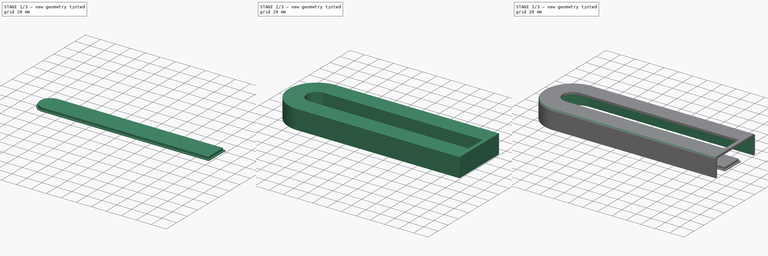
[diagram: build sequence overview — one tinted view per stage of 3, left to right]
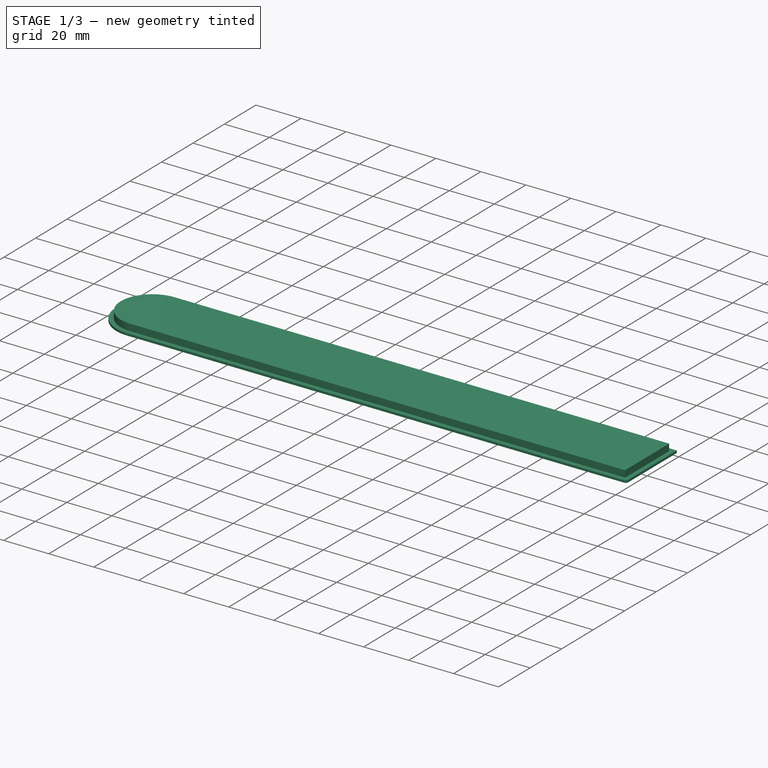
[diagram: stage 1 of 3 — iso view after this stage's code; geometry added in this stage tinted green]
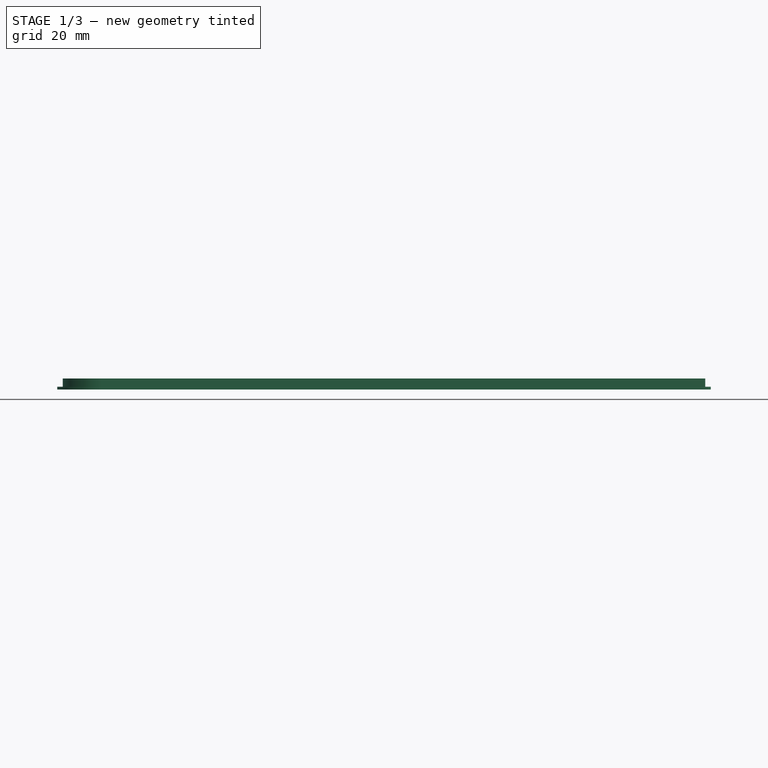
[diagram: stage 1 of 3 — front view after this stage's code; geometry added in this stage tinted green]
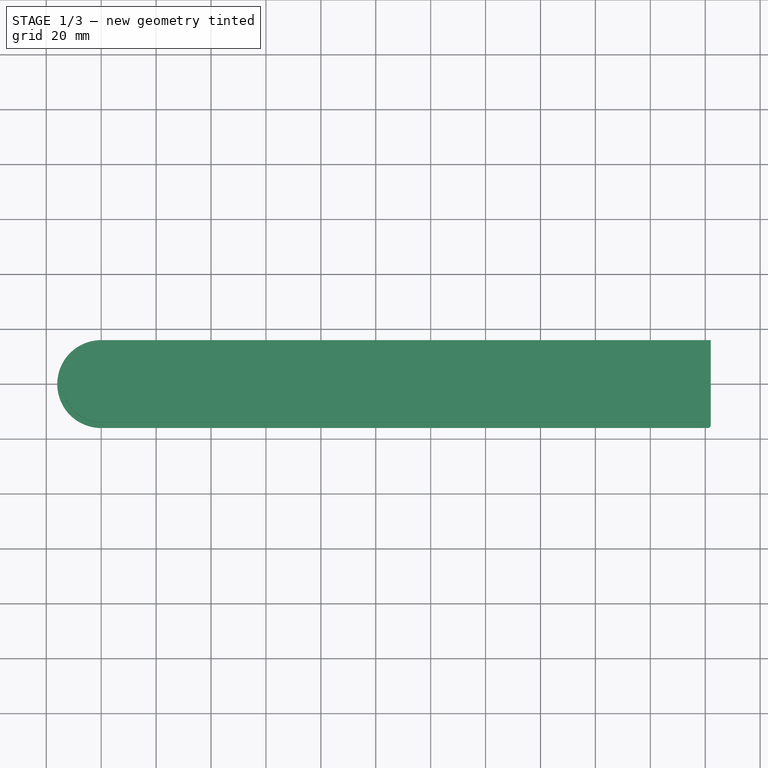
[diagram: stage 1 of 3 — top view after this stage's code; geometry added in this stage tinted green]
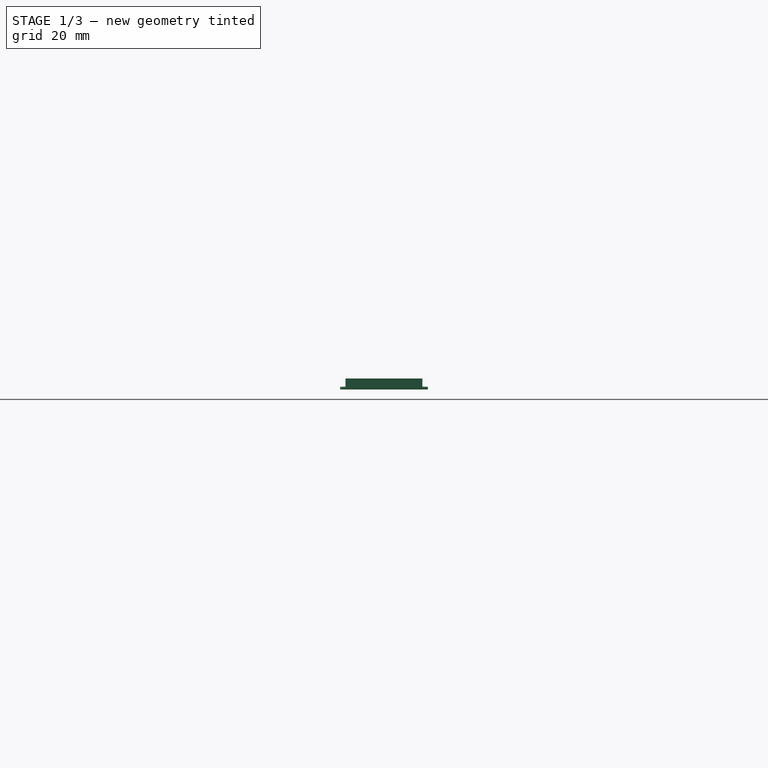
[diagram: stage 1 of 3 — right view after this stage's code; geometry added in this stage tinted green]
FCSTD DOCUMENT  (FreeCAD 0.19R24276 (Git))
Label: fam_schwertkastendeckel_mit_material_und_Plexiglaseinsatz
License: All rights reserved
LicenseURL: http://en.wikipedia.org/wiki/All_rights_reserved
objects: Sketcher::SketchObject×4, PartDesign::Fillet×4, PartDesign::Pad×3, PartDesign::Body×2, PartDesign::Pocket×1
note: 22 computed .brp shape members not serialized (recipe doc carries the construction recipe); baked Part::Feature solids carry a one-line shape summary decoded from their .brp

FEATURE [PartDesign::Body] Body  label="Deckel"
  Group = -> [Sketch,Sketch001,Pad,Pocket,Fillet,Fillet001]
  Origin = -> Origin
  Tip = -> Fillet001
FEATURE [Sketcher::SketchObject] Sketch002  label="Scheibe_oben"
  FullyConstrained = true
  MapMode = 5
  Support = -> [XY_Plane002]
  sketch-geometry (4):
    g0: LineSegment StartX=-6e-16 StartY=14 StartZ=0 EndX=220 EndY=14 EndZ=0
    g1: LineSegment StartX=220 StartY=14 StartZ=0 EndX=220 EndY=-14 EndZ=0
    g2: LineSegment StartX=220 StartY=-14 StartZ=0 EndX=0 EndY=-14 EndZ=0
    g3: ArcOfCircle CenterX=1.7e-15 CenterY=0 CenterZ=0 NormalX=0 NormalY=0 NormalZ=1 AngleXU=0 Radius=14 StartAngle=1.5708 EndAngle=4.71239
  constraints (11):
    c: Horizontal(g0)
    c: Coincident(g0,g1)
    c: Vertical(g1)
    c: Coincident(g1,g2)
    c: Tangent(g2,g3) = 1.5708
    c: Parallel(g0,g2)
    c: Tangent(g3,g0) = 1.5708
    c: PointOnObject(g3,g-1)
    c: PointOnObject(g0,g-2)
    c: Radius(g3) = 14
    c: DistanceX(g0,g0) = 220
FEATURE [Sketcher::SketchObject] Sketch003  label="Scheibe_unten"
  AttachmentOffset = pos=(0,0,-1) rot=(0,0,1;0rad)
  FullyConstrained = true
  MapMode = 5
  Placement = pos=(0,0,-1) rot=(0,0,1;0rad)
  Support = -> [XY_Plane002]
  sketch-geometry (4):
    g0: LineSegment StartX=1.3e-15 StartY=16 StartZ=0 EndX=222 EndY=16 EndZ=0
    g1: LineSegment StartX=222 StartY=16 StartZ=0 EndX=222 EndY=-16 EndZ=0
    g2: LineSegment StartX=222 StartY=-16 StartZ=0 EndX=1.04592e-11 EndY=-16 EndZ=0
    g3: ArcOfCircle CenterX=1.04666e-11 CenterY=0 CenterZ=0 NormalX=0 NormalY=0 NormalZ=1 AngleXU=0 Radius=16 StartAngle=1.5708 EndAngle=4.71239
  constraints (11):
    c: Horizontal(g0)
    c: Coincident(g0,g1)
    c: Vertical(g1)
    c: Coincident(g1,g2)
    c: Tangent(g2,g3) = 1.5708
    c: Parallel(g0,g2)
    c: Tangent(g3,g0) = 1.5708
    c: PointOnObject(g3,g-1)
    c: PointOnObject(g0,g-2)
    c: Radius(g3) = 16
    c: DistanceX(g0,g0) = 222
FEATURE [PartDesign::Pad] Pad001  label="Scheibe_oben_pad"
  Direction = (1,1,1)
  Length = 3
  Length2 = 100
  Profile = -> Sketch002
  Type = 0
FEATURE [PartDesign::Pad] Pad002  label="Scheibe_unten_pad"
  BaseFeature = -> Pad001
  Direction = (1,1,1)
  Length = 1
  Length2 = 100
  Profile = -> Sketch003
  Type = 0
FEATURE [PartDesign::Fillet] Fillet002
  Base = -> Pad002 [Edge8]
  BaseFeature = -> Pad002
  Radius = 1
  SupportTransform = false
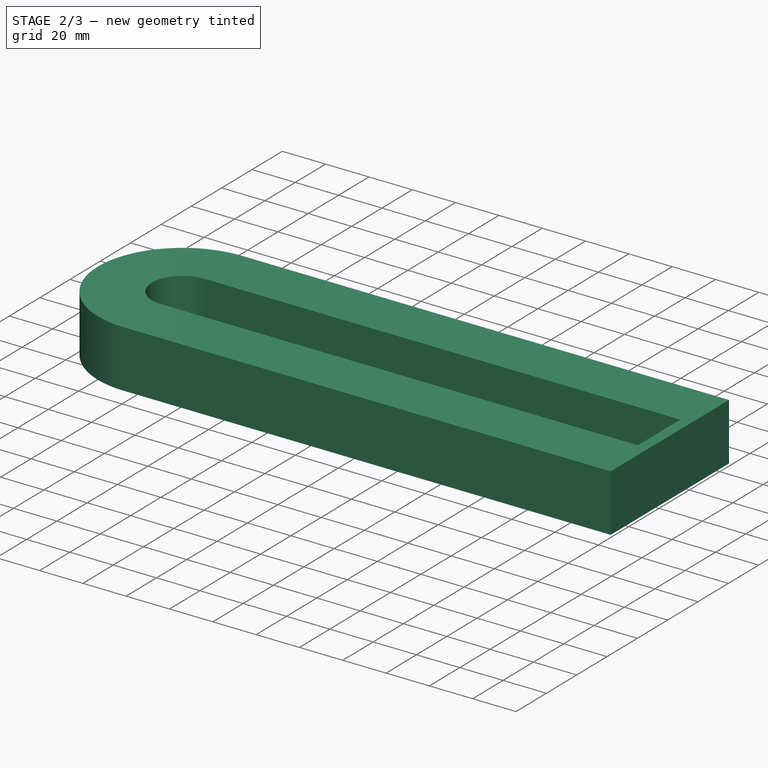
[diagram: stage 2 of 3 — iso view after this stage's code; geometry added in this stage tinted green]
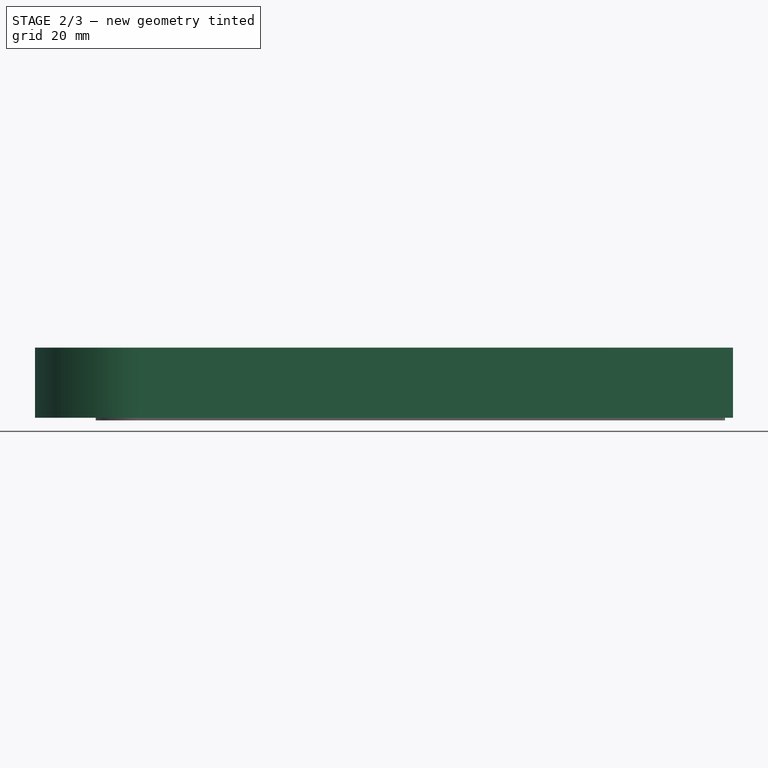
[diagram: stage 2 of 3 — front view after this stage's code; geometry added in this stage tinted green]
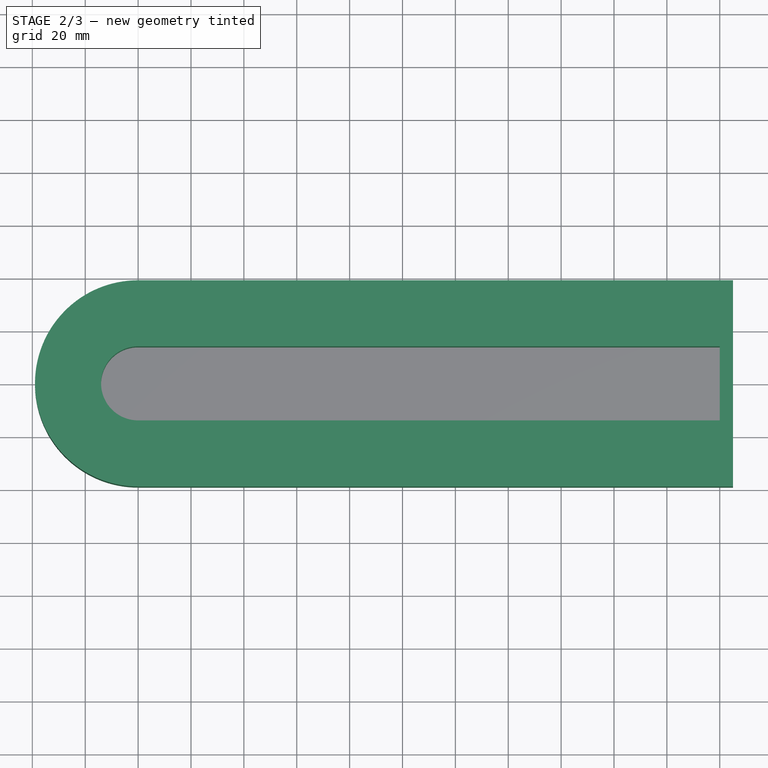
[diagram: stage 2 of 3 — top view after this stage's code; geometry added in this stage tinted green]
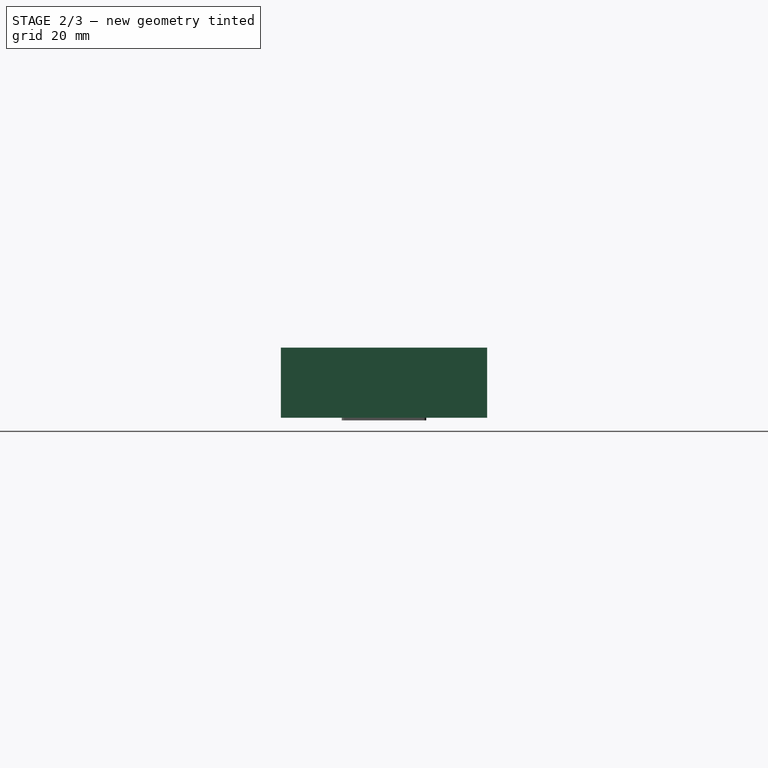
[diagram: stage 2 of 3 — right view after this stage's code; geometry added in this stage tinted green]
FEATURE [Sketcher::SketchObject] Sketch  label="Aussen"
  FullyConstrained = true
  MapMode = 5
  Support = -> [XY_Plane]
  sketch-geometry (8):
    g0: LineSegment StartX=-6.3e-15 StartY=39 StartZ=0 EndX=225 EndY=39 EndZ=0
    g1: LineSegment StartX=225 StartY=-39 StartZ=0 EndX=0 EndY=-39 EndZ=0
    g2: ArcOfCircle CenterX=0 CenterY=0 CenterZ=0 NormalX=0 NormalY=0 NormalZ=1 AngleXU=0 Radius=39 StartAngle=1.5708 EndAngle=4.71239
    g3: LineSegment StartX=225 StartY=39 StartZ=0 EndX=225 EndY=-39 EndZ=0
    g4: LineSegment StartX=-6e-16 StartY=14 StartZ=0 EndX=220 EndY=14 EndZ=0
    g5: LineSegment StartX=220 StartY=14 StartZ=0 EndX=220 EndY=-14 EndZ=0
    g6: LineSegment StartX=220 StartY=-14 StartZ=0 EndX=0 EndY=-14 EndZ=0
    g7: ArcOfCircle CenterX=1.7e-15 CenterY=0 CenterZ=0 NormalX=0 NormalY=0 NormalZ=1 AngleXU=0 Radius=14 StartAngle=1.5708 EndAngle=4.71239
  constraints (22):
    c: Horizontal(g0)
    c: Tangent(g1,g2) = 1.5708
    c: Tangent(g2,g0) = 1.5708
    c: PointOnObject(g2,g-1)
    c: PointOnObject(g2,g-2)
    c: Distance(g1,g1) = 225
    c: Radius(g2) = 39
    c: Coincident(g3,g0)
    c: Coincident(g3,g1)
    c: Vertical(g3)
    c: Horizontal(g4)
    c: Coincident(g4,g5)
    c: Vertical(g5)
    c: Coincident(g5,g6)
    c: Tangent(g6,g7) = 1.5708
    c: Parallel(g4,g6)
    c: Tangent(g7,g4) = 1.5708
    c: PointOnObject(g7,g-1)
    c: PointOnObject(g4,g-2)
    c: Vertical(g6,g1)
    c: Distance(g6,g1) = 25
    c: Distance(g5,g3) = 5
FEATURE [Sketcher::SketchObject] Sketch001  label="Innen"
  FullyConstrained = true
  MapMode = 5
  Support = -> [XY_Plane]
  sketch-geometry (4):
    g0: LineSegment StartX=-5.8e-15 StartY=36 StartZ=0 EndX=240 EndY=36 EndZ=0
    g1: LineSegment StartX=240 StartY=-36 StartZ=0 EndX=0 EndY=-36 EndZ=0
    g2: ArcOfCircle CenterX=0 CenterY=0 CenterZ=0 NormalX=0 NormalY=0 NormalZ=1 AngleXU=0 Radius=36 StartAngle=1.5708 EndAngle=4.71239
    g3: LineSegment StartX=240 StartY=36 StartZ=0 EndX=240 EndY=-36 EndZ=0
  constraints (11):
    c: Horizontal(g0)
    c: Tangent(g1,g2) = 1.5708
    c: Tangent(g2,g0) = 1.5708
    c: PointOnObject(g2,g-1)
    c: PointOnObject(g2,g-2)
    c: Coincident(g3,g0)
    c: Coincident(g3,g1)
    c: Vertical(g3)
    c: DistanceX(g1,g1) = 240
    c: Radius(g2) = 36
    c: Horizontal(g1,g1)
FEATURE [PartDesign::Pad] Pad
  Direction = (1,1,1)
  Length = 26.5
  Length2 = 100
  Profile = -> Sketch
  Type = 0
FEATURE [PartDesign::Fillet] Fillet003
  Base = -> Fillet002 [Edge3]
  BaseFeature = -> Fillet002
  Radius = 1
  SupportTransform = false
FEATURE [PartDesign::Body] Body001  label="Scheibe"
  Group = -> [Sketch002,Sketch003,Pad001,Pad002,Fillet002,Fillet003]
  Origin = -> Origin001
  Placement = pos=(0,0,23.5) rot=(0,0,1;0rad)
  Tip = -> Fillet003
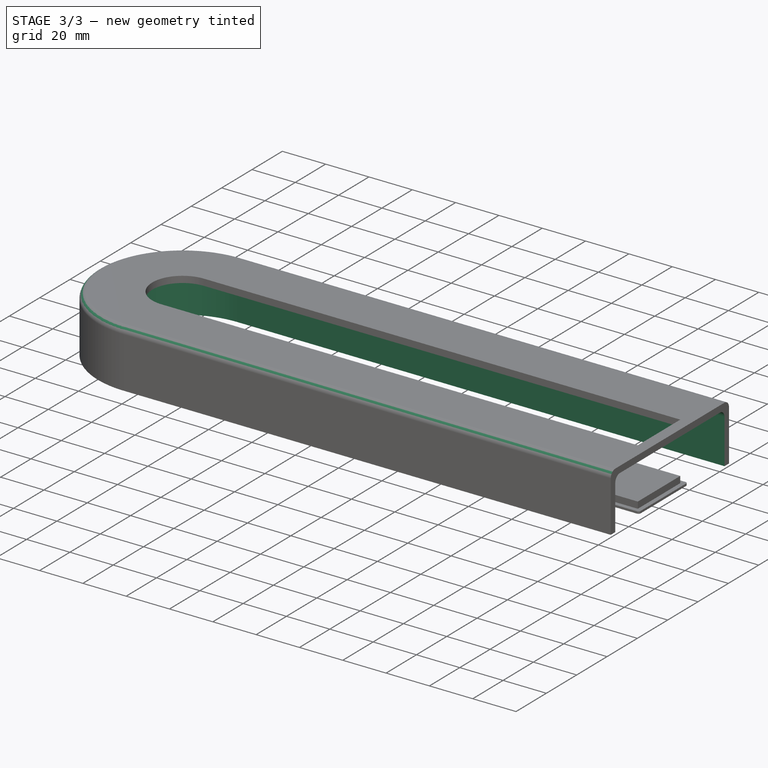
[diagram: stage 3 of 3 — iso view after this stage's code; geometry added in this stage tinted green]
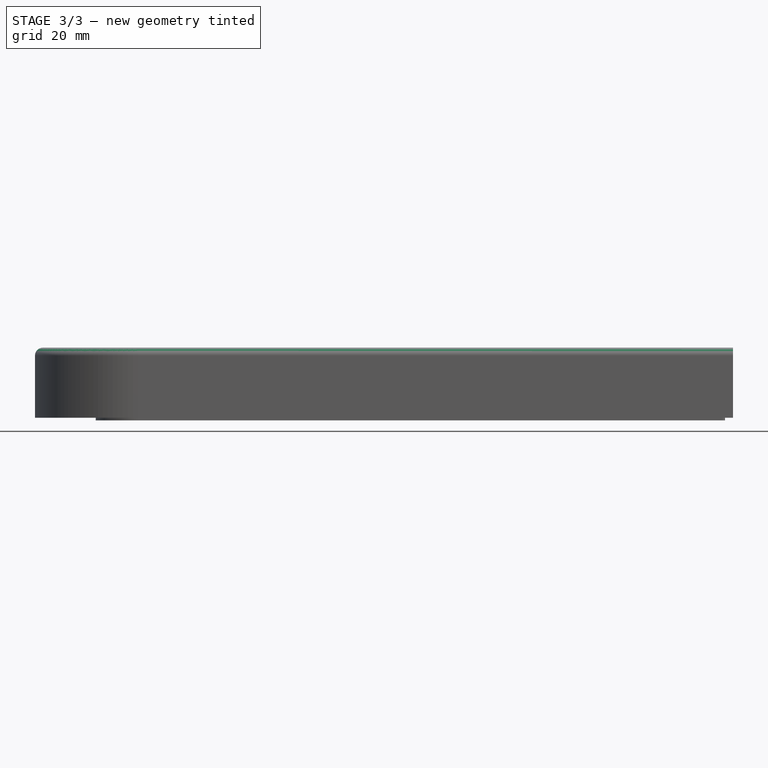
[diagram: stage 3 of 3 — front view after this stage's code; geometry added in this stage tinted green]
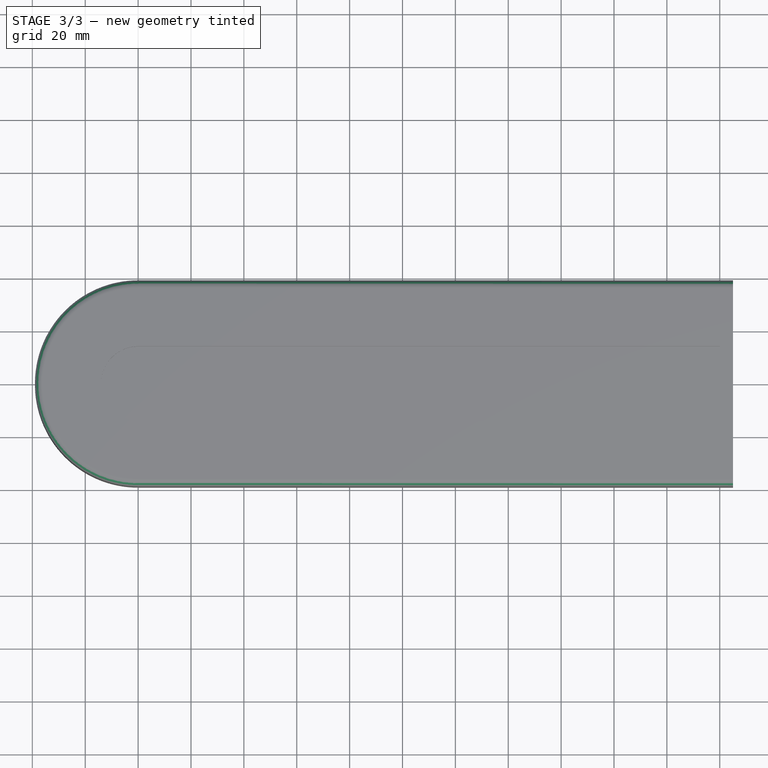
[diagram: stage 3 of 3 — top view after this stage's code; geometry added in this stage tinted green]
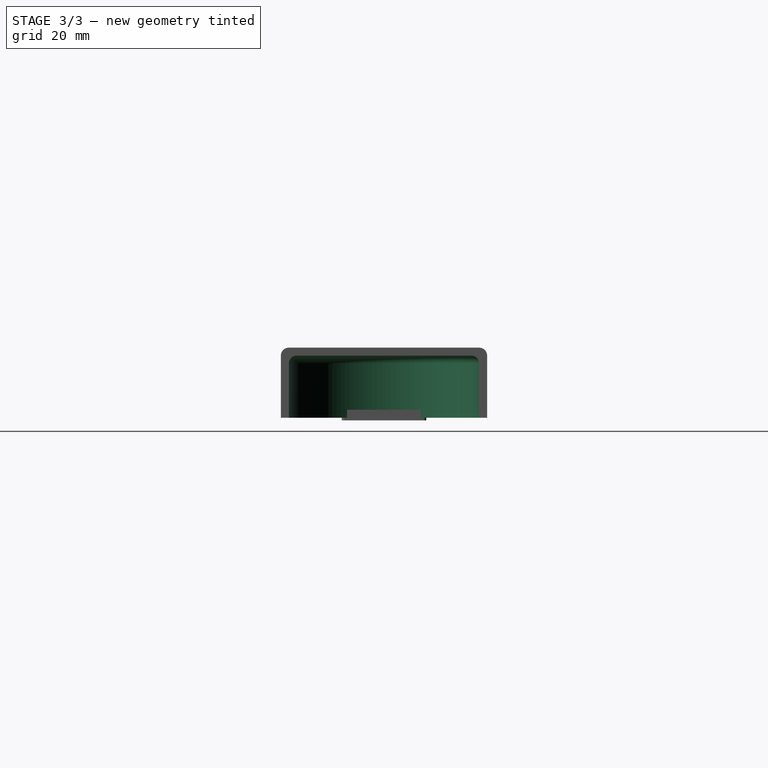
[diagram: stage 3 of 3 — right view after this stage's code; geometry added in this stage tinted green]
FEATURE [PartDesign::Pocket] Pocket
  BaseFeature = -> Pad
  Length = 0
  Length2 = 100
  Offset = 3
  Profile = -> Sketch001
  Type = 3
  UpToFace = -> Pad [Face10]
FEATURE [PartDesign::Fillet] Fillet
  Base = -> Pocket [Edge19]
  BaseFeature = -> Pocket
  Radius = 3
  SupportTransform = false
FEATURE [PartDesign::Fillet] Fillet001
  Base = -> Fillet [Edge32]
  BaseFeature = -> Fillet
  Radius = 3
  SupportTransform = false
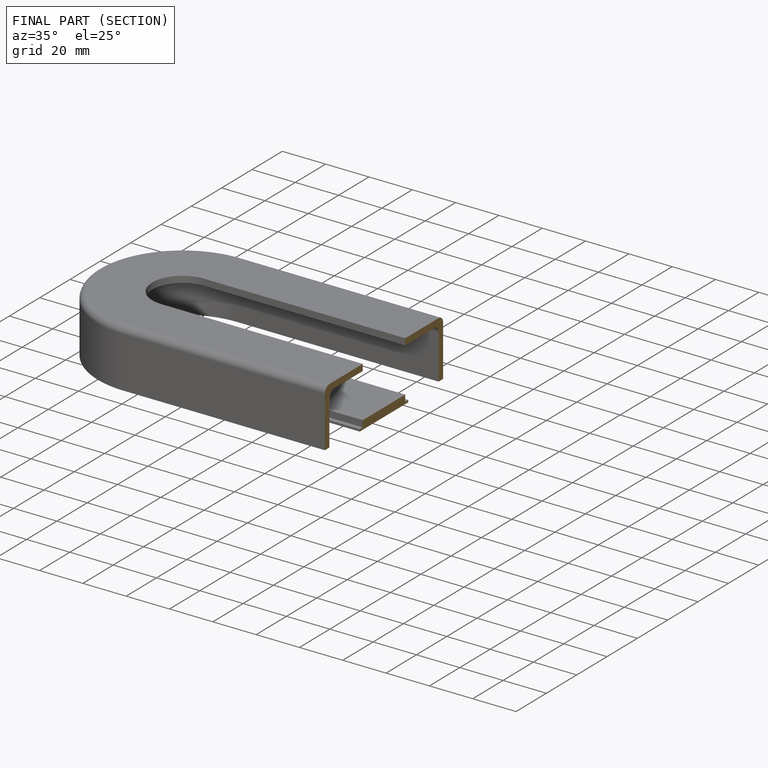
[diagram: finished part — half-section view (interior)]
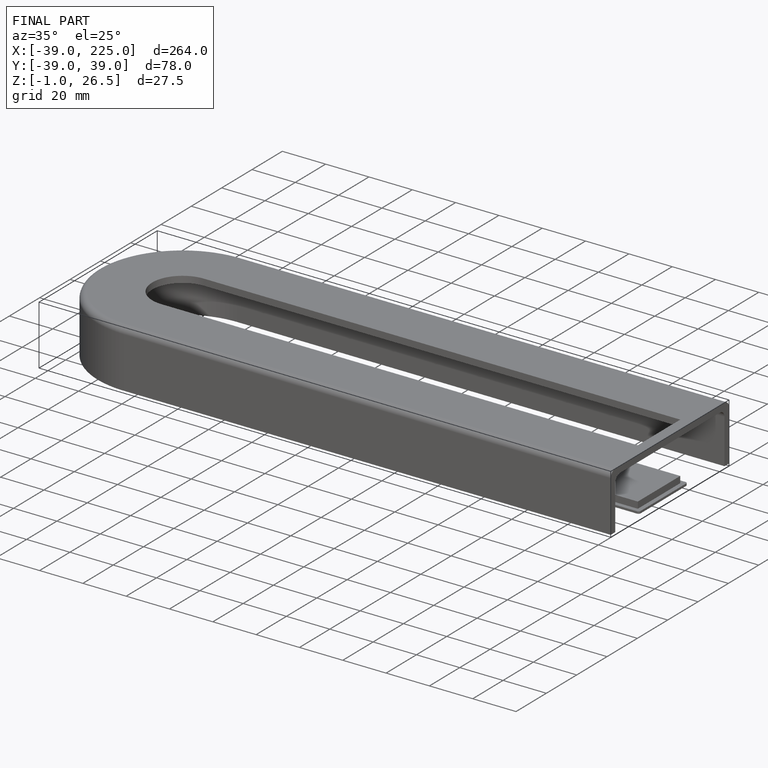
[diagram: finished part — iso view with bounding-box wireframe]
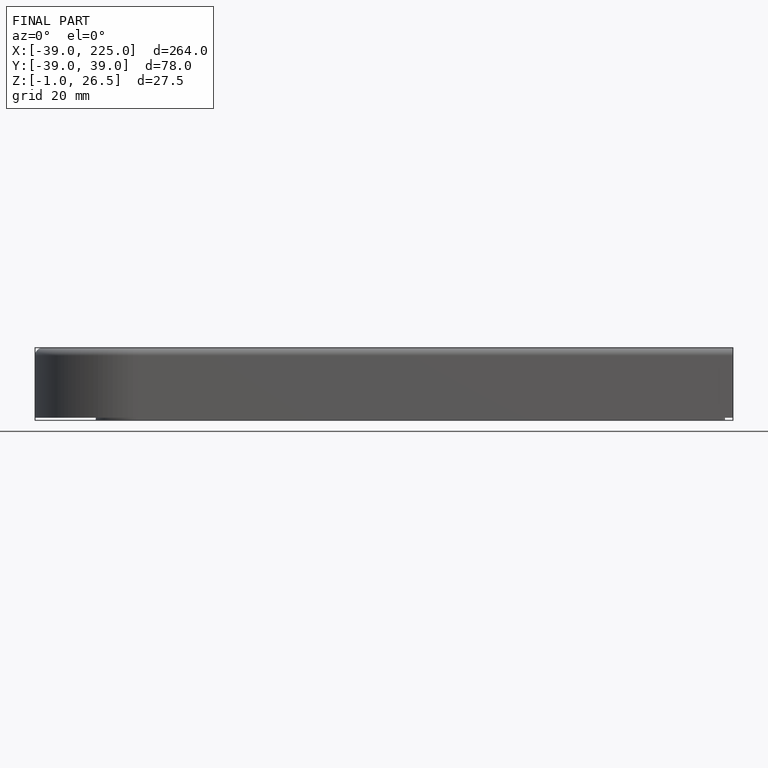
[diagram: finished part — front view with bounding-box wireframe]
